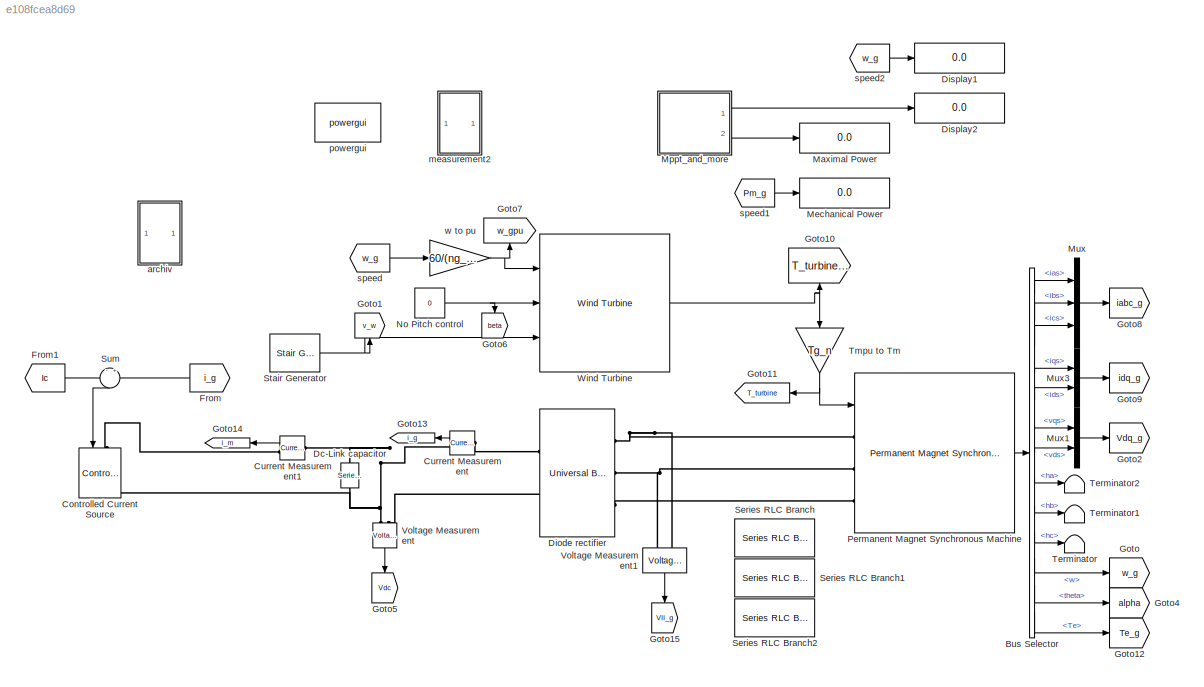
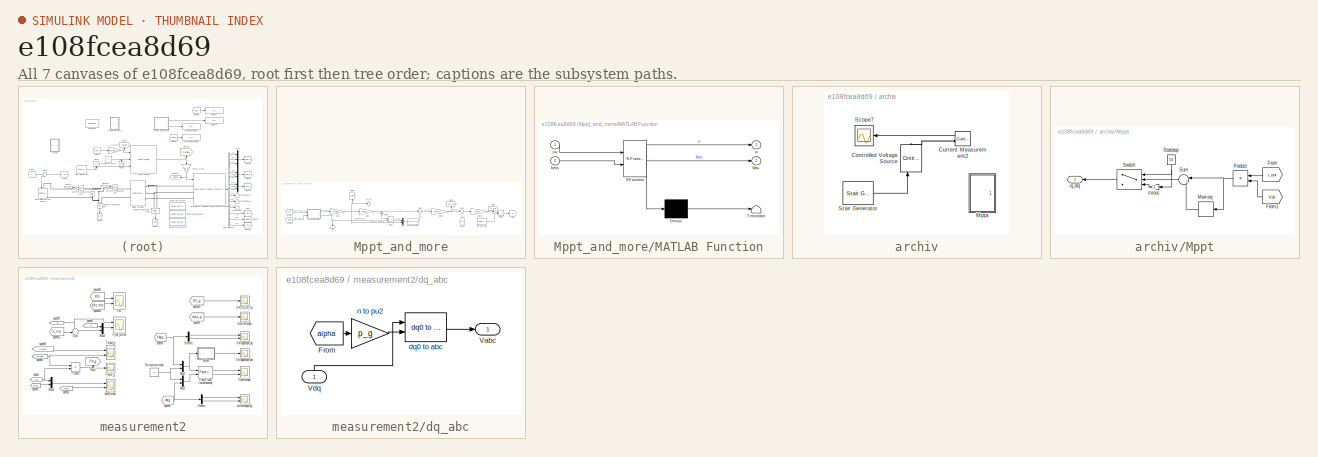
[diagram: thumbnail index - all 7 canvases of the model, root first then tree order]
MODEL slx_e108fcea8d69
KIND model
CONFIG AbsTol = auto
CONFIG FixedStep = auto
CONFIG MaxStep = 10e-5
CONFIG MinStep = auto
CONFIG RelTol = 1e-3
CONFIG SampleTimeConstraint = Unconstrained
CONFIG Solver = ode23tb
CONFIG SolverMode = Auto
CONFIG SolverName = ode23tb
CONFIG StartTime = 0.0
CONFIG StopTime = 8
BLOCK [BusSelector] Bus Selector
  OutputSignals = ias,ibs,ics,iqs,ids,vqs,vds,ha,hb,hc,w,theta,Te
  Ports = [1, 13]
BLOCK [Reference] Controlled Current Source  REF=powerlib/Electrical
Sources/Controlled Current Source
  Ports = [1, 0, 0, 0, 0, 1, 1]
  SourceBlock = powerlib/Electrical\nSources/Controlled Current Source
  SourceType = Controlled Current Source
BLOCK [Reference] Current Measurement  REF=powerlib/Measurements/Current Measurement
  Ports = [0, 1, 0, 0, 0, 1, 1]
  SourceBlock = powerlib/Measurements/Current Measurement
  SourceType = Current Measurement
  UserDataPersistent = on
BLOCK [Reference] Current Measurement1  REF=powerlib/Measurements/Current Measurement
  Ports = [0, 1, 0, 0, 0, 1, 1]
  SourceBlock = powerlib/Measurements/Current Measurement
  SourceType = Current Measurement
  UserDataPersistent = on
BLOCK [Reference] Dc-Link capacitor  REF=powerlib/Elements/Series RLC Branch
  Ports = [0, 0, 0, 0, 0, 1, 1]
  SourceBlock = powerlib/Elements/Series RLC Branch
  SourceType = Series RLC Branch
BLOCK [Reference] Diode rectifier  REF=powerlib/Power
Electronics/Universal Bridge
  Ports = [0, 0, 0, 0, 0, 3, 2]
  SourceBlock = powerlib/Power\nElectronics/Universal Bridge
  SourceType = Universal Bridge
BLOCK [Display] Display1
  Decimation = 1
  Ports = [1]
BLOCK [Display] Display2
  Decimation = 1
  Ports = [1]
BLOCK [From] From
  GotoTag = i_g
  TagVisibility = global
BLOCK [From] From1
  GotoTag = Ic
  TagVisibility = global
BLOCK [Goto] Goto
  GotoTag = w_g
  TagVisibility = global
BLOCK [Goto] Goto1
  GotoTag = v_w
  TagVisibility = global
BLOCK [Goto] Goto10
  GotoTag = T_turbinepu
  TagVisibility = global
BLOCK [Goto] Goto11
  GotoTag = T_turbine
  TagVisibility = global
BLOCK [Goto] Goto12
  GotoTag = Te_g
  TagVisibility = global
BLOCK [Goto] Goto13
  GotoTag = i_g
  TagVisibility = global
BLOCK [Goto] Goto14
  GotoTag = i_m
  TagVisibility = global
BLOCK [Goto] Goto15
  GotoTag = Vll_g
  TagVisibility = global
BLOCK [Goto] Goto2
  GotoTag = Vdq_g
  TagVisibility = global
BLOCK [Goto] Goto4
  GotoTag = alpha
  TagVisibility = global
BLOCK [Goto] Goto5
  GotoTag = Vdc
  TagVisibility = global
BLOCK [Goto] Goto6
  GotoTag = beta
  TagVisibility = global
BLOCK [Goto] Goto7
  GotoTag = w_gpu
  TagVisibility = global
BLOCK [Goto] Goto8
  GotoTag = iabc_g
  TagVisibility = global
BLOCK [Goto] Goto9
  GotoTag = idq_g
  TagVisibility = global
BLOCK [Display] Maximal Power
  Decimation = 1
  Ports = [1]
BLOCK [Display] Mechanical Power
  Decimation = 1
  Ports = [1]
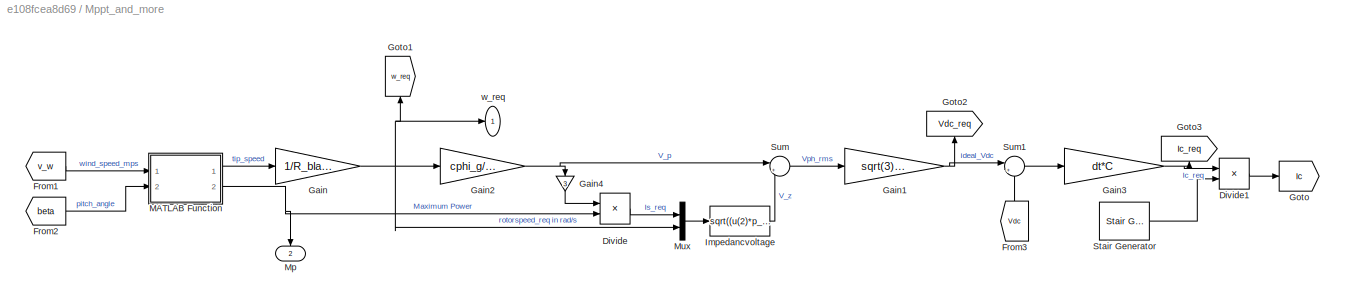
BLOCK [SubSystem] Mppt_and_more
  Ports = [0, 2]
  RequestExecContextInheritance = off
  Variant = off
BLOCK [Product] Mppt_and_more/Divide
  InputSameDT = off
  Inputs = /*
  OutDataTypeStr = Inherit: Inherit via internal rule
  Ports = [2, 1]
  RndMeth = Floor
  SaturateOnIntegerOverflow = off
BLOCK [Product] Mppt_and_more/Divide1
  InputSameDT = off
  Inputs = **
  OutDataTypeStr = Inherit: Inherit via internal rule
  Ports = [2, 1]
  RndMeth = Floor
  SaturateOnIntegerOverflow = off
BLOCK [From] Mppt_and_more/From1
  GotoTag = v_w
  TagVisibility = global
BLOCK [From] Mppt_and_more/From2
  GotoTag = beta
  TagVisibility = global
BLOCK [From] Mppt_and_more/From3
  GotoTag = Vdc
  TagVisibility = global
BLOCK [Gain] Mppt_and_more/Gain
  Gain = 1/R_blades
  OutDataTypeStr = Inherit: Inherit via internal rule
  ParamDataTypeStr = Inherit: Inherit via internal rule
  SaturateOnIntegerOverflow = off
BLOCK [Gain] Mppt_and_more/Gain1
  Gain = sqrt(3)*sqrt(2)
  OutDataTypeStr = Inherit: Inherit via internal rule
  ParamDataTypeStr = Inherit: Inherit via internal rule
  SaturateOnIntegerOverflow = off
BLOCK [Gain] Mppt_and_more/Gain2
  Gain = cphi_g/(2*pi)
  OutDataTypeStr = Inherit: Inherit via internal rule
  ParamDataTypeStr = Inherit: Inherit via internal rule
  SaturateOnIntegerOverflow = off
BLOCK [Gain] Mppt_and_more/Gain3
  Gain = dt*C
  OutDataTypeStr = Inherit: Inherit via internal rule
  ParamDataTypeStr = Inherit: Inherit via internal rule
  SaturateOnIntegerOverflow = off
BLOCK [Gain] Mppt_and_more/Gain4
  Gain = 3
  OutDataTypeStr = Inherit: Inherit via internal rule
  ParamDataTypeStr = Inherit: Inherit via internal rule
  SaturateOnIntegerOverflow = off
BLOCK [Goto] Mppt_and_more/Goto
  GotoTag = Ic
  TagVisibility = global
BLOCK [Goto] Mppt_and_more/Goto1
  GotoTag = w_req
  TagVisibility = global
BLOCK [Goto] Mppt_and_more/Goto2
  GotoTag = Vdc_req
  TagVisibility = global
BLOCK [Goto] Mppt_and_more/Goto3
  GotoTag = Ic_req
  TagVisibility = global
BLOCK [Fcn] Mppt_and_more/Impedancvoltage
  Expr = sqrt((u(2)*p_g*Ls_g)^2+Rs_g^2)*u(1)
BLOCK [SubSystem] Mppt_and_more/MATLAB Function
  ErrorFcn = Stateflow.Translate.translate
  PermitHierarchicalResolution = ExplicitOnly
  Ports = [2, 2]
  RequestExecContextInheritance = off
  SFBlockType = MATLAB Function
  TreatAsAtomicUnit = on
  Variant = off
BLOCK [Demux] Mppt_and_more/MATLAB Function/ Demux 
  Outputs = 1
  Ports = [1, 1]
BLOCK [S-Function] Mppt_and_more/MATLAB Function/ SFunction 
  EnableBusSupport = on
  FunctionName = sf_sfun
  PortCounts = [2 3]
  Ports = [2, 3]
  SFunctionDeploymentMode = off
  Tag = Stateflow S-Function Diode_Windturbin 2
BLOCK [Terminator] Mppt_and_more/MATLAB Function/ Terminator 
BLOCK [Outport] Mppt_and_more/MATLAB Function/Max
  IconDisplay = Port number
  Port = 2
BLOCK [Inport] Mppt_and_more/MATLAB Function/beta
  IconDisplay = Port number
  Port = 2
BLOCK [Inport] Mppt_and_more/MATLAB Function/vw
  IconDisplay = Port number
BLOCK [Outport] Mppt_and_more/MATLAB Function/w
  IconDisplay = Port number
BLOCK [Outport] Mppt_and_more/Mp
  IconDisplay = Port number
  Port = 2
BLOCK [Mux] Mppt_and_more/Mux
  DisplayOption = bar
  Inputs = 2
  Ports = [2, 1]
BLOCK [Reference] Mppt_and_more/Stair Generator  REF=powerlib_meascontrol/Pulse & Signal
Generators/Stair
Generator
  Ports = [0, 1]
  SourceBlock = powerlib_meascontrol/Pulse & Signal\nGenerators/Stair\nGenerator
  SourceType = Stair Generator
BLOCK [Sum] Mppt_and_more/Sum
  IconShape = round
  InputSameDT = off
  Inputs = |+-
  OutDataTypeStr = Inherit: Inherit via internal rule
  Ports = [2, 1]
  SaturateOnIntegerOverflow = off
BLOCK [Sum] Mppt_and_more/Sum1
  IconShape = round
  InputSameDT = off
  Inputs = |+-
  OutDataTypeStr = Inherit: Inherit via internal rule
  Ports = [2, 1]
  SaturateOnIntegerOverflow = off
BLOCK [Outport] Mppt_and_more/w_req
  IconDisplay = Port number
BLOCK [Mux] Mux
  DisplayOption = bar
  Inputs = 3
  Ports = [3, 1]
BLOCK [Mux] Mux1
  DisplayOption = bar
  Inputs = 2
  Ports = [2, 1]
BLOCK [Mux] Mux3
  DisplayOption = bar
  Inputs = 2
  Ports = [2, 1]
BLOCK [Constant] No Pitch control
  Value = 0
BLOCK [Reference] Permanent Magnet Synchronous Machine  REF=powerlib/Machines/Permanent Magnet
Synchronous Machine
  Ports = [1, 1, 0, 0, 0, 3]
  SourceBlock = powerlib/Machines/Permanent Magnet\nSynchronous Machine
  SourceType = Permanent Magnet Synchronous Machine
BLOCK [Reference] Series RLC Branch  REF=powerlib/Elements/Series RLC Branch
  Commented = on
  Ports = [0, 0, 0, 0, 0, 1, 1]
  SourceBlock = powerlib/Elements/Series RLC Branch
  SourceType = Series RLC Branch
BLOCK [Reference] Series RLC Branch1  REF=powerlib/Elements/Series RLC Branch
  Commented = on
  Ports = [0, 0, 0, 0, 0, 1, 1]
  SourceBlock = powerlib/Elements/Series RLC Branch
  SourceType = Series RLC Branch
BLOCK [Reference] Series RLC Branch2  REF=powerlib/Elements/Series RLC Branch
  Commented = on
  Ports = [0, 0, 0, 0, 0, 1, 1]
  SourceBlock = powerlib/Elements/Series RLC Branch
  SourceType = Series RLC Branch
BLOCK [Reference] Stair Generator  REF=powerlib_meascontrol/Pulse & Signal
Generators/Stair
Generator
  Ports = [0, 1]
  SourceBlock = powerlib_meascontrol/Pulse & Signal\nGenerators/Stair\nGenerator
  SourceType = Stair Generator
BLOCK [Sum] Sum
  IconShape = round
  InputSameDT = off
  Inputs = -|+
  OutDataTypeStr = Inherit: Inherit via internal rule
  Ports = [2, 1]
  SaturateOnIntegerOverflow = off
BLOCK [Terminator] Terminator
BLOCK [Terminator] Terminator1
BLOCK [Terminator] Terminator2
BLOCK [Gain] Tmpu to Tm
  Gain = Tg_n
  OutDataTypeStr = Inherit: Inherit via internal rule
  ParamDataTypeStr = Inherit: Inherit via internal rule
  SaturateOnIntegerOverflow = off
BLOCK [Reference] Voltage Measurement  REF=powerlib/Measurements/Voltage Measurement
  Ports = [0, 1, 0, 0, 0, 2]
  SourceBlock = powerlib/Measurements/Voltage Measurement
  SourceType = Voltage Measurement
  UserDataPersistent = on
BLOCK [Reference] Voltage Measurement1  REF=powerlib/Measurements/Voltage Measurement
  Ports = [0, 1, 0, 0, 0, 2]
  SourceBlock = powerlib/Measurements/Voltage Measurement
  SourceType = Voltage Measurement
  UserDataPersistent = on
BLOCK [Reference] Wind Turbine  REF=re_lib/Wind Generation/Wind Turbine
  Ports = [3, 1]
  SourceBlock = re_lib/Wind Generation/Wind Turbine
  SourceType = Wind Turbine
BLOCK [SubSystem] archiv
  Commented = on
  Ports = []
  RequestExecContextInheritance = off
  Variant = off
BLOCK [Reference] archiv/Controlled Voltage Source  REF=powerlib/Electrical
Sources/Controlled Voltage Source
  Commented = on
  Ports = [1, 0, 0, 0, 0, 1, 1]
  SourceBlock = powerlib/Electrical\nSources/Controlled Voltage Source
  SourceType = Controlled Voltage Source
BLOCK [Reference] archiv/Current Measurement2  REF=powerlib/Measurements/Current Measurement
  Commented = on
  Ports = [0, 1, 0, 0, 0, 1, 1]
  SourceBlock = powerlib/Measurements/Current Measurement
  SourceType = Current Measurement
  UserDataPersistent = on
BLOCK [SubSystem] archiv/Mppt
  Commented = on
  Ports = [0, 1]
  RequestExecContextInheritance = off
  Variant = off
BLOCK [From] archiv/Mppt/From
  GotoTag = i_out
BLOCK [From] archiv/Mppt/From1
  GotoTag = Vdc
BLOCK [Memory] archiv/Mppt/Memory
BLOCK [Product] archiv/Mppt/Product
  InputSameDT = off
  OutDataTypeStr = Inherit: Inherit via internal rule
  Ports = [2, 1]
  RndMeth = Floor
  SaturateOnIntegerOverflow = off
BLOCK [Constant] archiv/Mppt/Startstep
  Value = 50
BLOCK [Sum] archiv/Mppt/Sum
  IconShape = round
  InputSameDT = off
  Inputs = |+-
  OutDataTypeStr = Inherit: Inherit via internal rule
  Ports = [2, 1]
  SaturateOnIntegerOverflow = off
BLOCK [Switch] archiv/Mppt/Switch
  Criteria = u2 > Threshold
  InputSameDT = off
  SaturateOnIntegerOverflow = off
BLOCK [Outport] archiv/Mppt/iq_req
  IconDisplay = Port number
BLOCK [Gain] archiv/Mppt/minus
  Gain = -1
  OutDataTypeStr = Inherit: Inherit via internal rule
  ParamDataTypeStr = Inherit: Inherit via internal rule
  SaturateOnIntegerOverflow = off
BLOCK [Scope] archiv/Scope7
  Commented = on
  Ports = [1]
  ScopeSpecificationString = Simulink.scopes.TimeScopeBlockCfg('CurrentConfiguration', extmgr.ConfigurationSet(extmgr.Configuration('Core','General UI',true),extmgr.Configuration('Core','Source UI',true),extmgr.Configuration('Sources','WiredSimulink',true,'DataLoggingVariableName','ScopeData2'),extmgr.Configuration('Visuals','Time Domain',true,'SerializedDisplays',{struct('MinYLimReal','13.98044','MaxYLimReal','22.83673','YLa...<+1477ch>
BLOCK [Reference] archiv/Stair Generator  REF=powerlib_meascontrol/Pulse & Signal
Generators/Stair
Generator
  Commented = on
  Ports = [0, 1]
  SourceBlock = powerlib_meascontrol/Pulse & Signal\nGenerators/Stair\nGenerator
  SourceType = Stair Generator
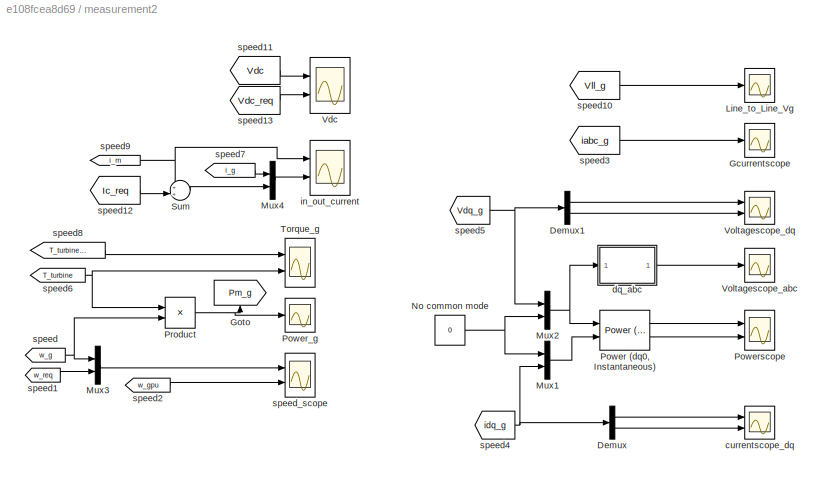
BLOCK [SubSystem] measurement2
  Ports = []
  RequestExecContextInheritance = off
  Variant = off
BLOCK [Demux] measurement2/Demux
  DisplayOption = bar
  Outputs = 2
  Ports = [1, 2]
BLOCK [Demux] measurement2/Demux1
  DisplayOption = bar
  Outputs = 2
  Ports = [1, 2]
BLOCK [Scope] measurement2/Gcurrentscope
  Ports = [1]
  ScopeSpecificationString = Simulink.scopes.TimeScopeBlockCfg('CurrentConfiguration', extmgr.ConfigurationSet(extmgr.Configuration('Core','General UI',true),extmgr.Configuration('Core','Source UI',true),extmgr.Configuration('Sources','WiredSimulink',true,'DataLoggingVariableName','ScopeData2','DataLoggingSaveFormat','Array','DataLoggingDecimation','1','DataLoggingDecimateData',true),extmgr.Configuration('Visuals','Time Domai...<+1477ch>
BLOCK [Goto] measurement2/Goto
  GotoTag = Pm_g
  TagVisibility = global
BLOCK [Scope] measurement2/Line_to_Line_Vg
  Ports = [1]
  ScopeSpecificationString = Simulink.scopes.TimeScopeBlockCfg('CurrentConfiguration', extmgr.ConfigurationSet(extmgr.Configuration('Core','General UI',true),extmgr.Configuration('Core','Source UI',true),extmgr.Configuration('Sources','WiredSimulink',true,'DataLoggingVariableName','ScopeData4','DataLoggingSaveFormat','Array','DataLoggingDecimation','1','DataLoggingDecimateData',true),extmgr.Configuration('Visuals','Time Domai...<+1476ch>
BLOCK [Mux] measurement2/Mux1
  DisplayOption = bar
  Inputs = 2
  Ports = [2, 1]
BLOCK [Mux] measurement2/Mux2
  DisplayOption = bar
  Inputs = 2
  Ports = [2, 1]
BLOCK [Mux] measurement2/Mux3
  DisplayOption = bar
  Inputs = 2
  Ports = [2, 1]
BLOCK [Mux] measurement2/Mux4
  DisplayOption = bar
  Inputs = 2
  Ports = [2, 1]
BLOCK [Constant] measurement2/No common mode
  Value = 0
BLOCK [Reference] measurement2/Power (dq0, Instantaneous)  REF=powerlib_meascontrol/Measurements/Power
(dq0, Instantaneous)
  Ports = [2, 2]
  SourceBlock = powerlib_meascontrol/Measurements/Power\n(dq0, Instantaneous)
  SourceType = Power (dq0, Instantaneous)
BLOCK [Scope] measurement2/Power_g
  Ports = [1]
  ScopeSpecificationString = Simulink.scopes.TimeScopeBlockCfg('CurrentConfiguration', extmgr.ConfigurationSet(extmgr.Configuration('Core','General UI',true),extmgr.Configuration('Core','Source UI',true),extmgr.Configuration('Sources','WiredSimulink',true,'DataLoggingVariableName','ScopeData1'),extmgr.Configuration('Visuals','Time Domain',true,'SerializedDisplays',{struct('MinYLimReal','-1807.20588','MaxYLimReal','200.80065',...<+1411ch>
BLOCK [Scope] measurement2/Powerscope
  NumInputPorts = 2
  Ports = [2]
  ScopeSpecificationString = Simulink.scopes.TimeScopeBlockCfg('CurrentConfiguration', extmgr.ConfigurationSet(extmgr.Configuration('Core','General UI',true),extmgr.Configuration('Core','Source UI',true),extmgr.Configuration('Sources','WiredSimulink',true,'DataLoggingVariableName','ScopeData4'),extmgr.Configuration('Visuals','Time Domain',true,'SerializedDisplays',{struct('MinYLimReal','-1.00000','MaxYLimReal','1.00000','YLab...<+2454ch>
BLOCK [Product] measurement2/Product
  InputSameDT = off
  OutDataTypeStr = Inherit: Inherit via internal rule
  Ports = [2, 1]
  RndMeth = Floor
  SaturateOnIntegerOverflow = off
BLOCK [Sum] measurement2/Sum
  IconShape = round
  InputSameDT = off
  Inputs = ++|
  OutDataTypeStr = Inherit: Inherit via internal rule
  Ports = [2, 1]
  SaturateOnIntegerOverflow = off
BLOCK [Scope] measurement2/Torque_g
  NumInputPorts = 2
  Ports = [2]
  ScopeSpecificationString = Simulink.scopes.TimeScopeBlockCfg('CurrentConfiguration', extmgr.ConfigurationSet(extmgr.Configuration('Core','General UI',true),extmgr.Configuration('Core','Source UI',true),extmgr.Configuration('Sources','WiredSimulink',true,'DataLoggingVariableName','ScopeData2'),extmgr.Configuration('Visuals','Time Domain',true,'SerializedDisplays',{struct('MinYLimReal','-1.14953','MaxYLimReal','0.12175','YLab...<+2101ch>
BLOCK [Scope] measurement2/Vdc
  NumInputPorts = 2
  Ports = [2]
  ScopeSpecificationString = Simulink.scopes.TimeScopeBlockCfg('CurrentConfiguration', extmgr.ConfigurationSet(extmgr.Configuration('Core','General UI',true),extmgr.Configuration('Core','Source UI',true),extmgr.Configuration('Sources','WiredSimulink',true,'DataLoggingVariableName','ScopeData5','DataLoggingSaveFormat','Array','DataLoggingDecimation','1','DataLoggingDecimateData',true),extmgr.Configuration('Visuals','Time Domai...<+1529ch>
BLOCK [Scope] measurement2/Voltagescope_abc
  Ports = [1]
  ScopeSpecificationString = Simulink.scopes.TimeScopeBlockCfg('CurrentConfiguration', extmgr.ConfigurationSet(extmgr.Configuration('Core','General UI',true),extmgr.Configuration('Core','Source UI',true),extmgr.Configuration('Sources','WiredSimulink',true,'DataLoggingVariableName','ScopeData5'),extmgr.Configuration('Visuals','Time Domain',true,'SerializedDisplays',{struct('MinYLimReal','-1.00000','MaxYLimReal','1.00000','YLab...<+1535ch>
BLOCK [Scope] measurement2/Voltagescope_dq
  NumInputPorts = 2
  Ports = [2]
  ScopeSpecificationString = Simulink.scopes.TimeScopeBlockCfg('CurrentConfiguration', extmgr.ConfigurationSet(extmgr.Configuration('Core','General UI',true),extmgr.Configuration('Core','Source UI',true),extmgr.Configuration('Sources','WiredSimulink',true,'DataLoggingVariableName','ScopeData6','DataLoggingSaveFormat','Array','DataLoggingDecimation','1','DataLoggingDecimateData',true),extmgr.Configuration('Visuals','Time Domai...<+1498ch>
BLOCK [Scope] measurement2/currentscope_dq
  NumInputPorts = 2
  Ports = [2]
  ScopeSpecificationString = Simulink.scopes.TimeScopeBlockCfg('CurrentConfiguration', extmgr.ConfigurationSet(extmgr.Configuration('Core','General UI',true),extmgr.Configuration('Core','Source UI',true),extmgr.Configuration('Sources','WiredSimulink',true,'DataLoggingVariableName','ScopeData3'),extmgr.Configuration('Visuals','Time Domain',true,'SerializedDisplays',{struct('MinYLimReal','-56.31009','MaxYLimReal','6.25668','YLa...<+2094ch>
BLOCK [SubSystem] measurement2/dq_abc
  Ports = [1, 1]
  RequestExecContextInheritance = off
  Variant = off
BLOCK [From] measurement2/dq_abc/From
  GotoTag = alpha
  TagVisibility = global
BLOCK [Outport] measurement2/dq_abc/Vabc
  IconDisplay = Port number
BLOCK [Inport] measurement2/dq_abc/Vdq
  IconDisplay = Port number
BLOCK [Reference] measurement2/dq_abc/dq0 to abc  REF=powerlib_meascontrol/Transformations/dq0 to abc
  Ports = [2, 1]
  SourceBlock = powerlib_meascontrol/Transformations/dq0 to abc
  SourceType = dq0 to abc Transformation
BLOCK [Gain] measurement2/dq_abc/n to pu2
  Gain = p_g
  OutDataTypeStr = Inherit: Inherit via internal rule
  ParamDataTypeStr = Inherit: Inherit via internal rule
  SaturateOnIntegerOverflow = off
BLOCK [Scope] measurement2/in_out_current
  NumInputPorts = 2
  Ports = [2]
  ScopeSpecificationString = Simulink.scopes.TimeScopeBlockCfg('CurrentConfiguration', extmgr.ConfigurationSet(extmgr.Configuration('Core','General UI',true),extmgr.Configuration('Core','Source UI',true),extmgr.Configuration('Sources','WiredSimulink',true,'DataLoggingVariableName','ScopeData3','DataLoggingSaveFormat','Array','DataLoggingDecimation','1','DataLoggingDecimateData',true),extmgr.Configuration('Visuals','Time Domai...<+2257ch>
BLOCK [From] measurement2/speed
  GotoTag = w_g
  TagVisibility = global
BLOCK [From] measurement2/speed1
  GotoTag = w_req
  TagVisibility = global
BLOCK [From] measurement2/speed10
  GotoTag = Vll_g
  TagVisibility = global
BLOCK [From] measurement2/speed11
  GotoTag = Vdc
  TagVisibility = global
BLOCK [From] measurement2/speed12
  GotoTag = Ic_req
  TagVisibility = global
BLOCK [From] measurement2/speed13
  GotoTag = Vdc_req
  TagVisibility = global
BLOCK [From] measurement2/speed2
  GotoTag = w_gpu
  TagVisibility = global
BLOCK [From] measurement2/speed3
  GotoTag = iabc_g
  TagVisibility = global
BLOCK [From] measurement2/speed4
  GotoTag = idq_g
  TagVisibility = global
BLOCK [From] measurement2/speed5
  GotoTag = Vdq_g
  TagVisibility = global
BLOCK [From] measurement2/speed6
  GotoTag = T_turbine
  TagVisibility = global
BLOCK [From] measurement2/speed7
  GotoTag = i_g
  TagVisibility = global
BLOCK [From] measurement2/speed8
  GotoTag = T_turbinepu
  TagVisibility = global
BLOCK [From] measurement2/speed9
  GotoTag = i_m
  TagVisibility = global
BLOCK [Scope] measurement2/speed_scope
  NumInputPorts = 2
  Ports = [2]
  ScopeSpecificationString = Simulink.scopes.TimeScopeBlockCfg('CurrentConfiguration', extmgr.ConfigurationSet(extmgr.Configuration('Core','General UI',true),extmgr.Configuration('Core','Source UI',true),extmgr.Configuration('Sources','WiredSimulink',true),extmgr.Configuration('Visuals','Time Domain',true,'SerializedDisplays',{struct('MinYLimReal','-12.36486','MaxYLimReal','111.28378','YLabelReal','','MinYLimMag','0.00000','M...<+2081ch>
BLOCK [Reference] powergui  REF=powerlib/powergui
  Ports = []
  Priority = 1
  SourceBlock = powerlib/powergui
  SourceType = PSB option menu block
  UserDataPersistent = on
BLOCK [From] speed
  GotoTag = w_g
  TagVisibility = global
BLOCK [From] speed1
  GotoTag = Pm_g
  TagVisibility = global
BLOCK [From] speed2
  GotoTag = w_g
  TagVisibility = global
BLOCK [Gain] w to pu
  Gain = 60/(ng_0*2*pi)
  OutDataTypeStr = Inherit: Inherit via internal rule
  ParamDataTypeStr = Inherit: Inherit via internal rule
  SaturateOnIntegerOverflow = off
LINE Bus Selector:1 -> Mux:1
LINE Bus Selector:10 -> Terminator:1
LINE Bus Selector:11 -> Goto:1
LINE Bus Selector:12 -> Goto4:1
LINE Bus Selector:13 -> Goto12:1
LINE Bus Selector:2 -> Mux:2
LINE Bus Selector:3 -> Mux:3
LINE Bus Selector:4 -> Mux3:1
LINE Bus Selector:5 -> Mux3:2
LINE Bus Selector:6 -> Mux1:1
LINE Bus Selector:7 -> Mux1:2
LINE Bus Selector:8 -> Terminator2:1
LINE Bus Selector:9 -> Terminator1:1
LINE Current Measurement1:1 -> Goto14:1
LINE Current Measurement:1 -> Goto13:1
LINE From1:1 -> Sum:1
LINE From:1 -> Sum:2
LINE Mppt_and_more/Divide1:1 -> Mppt_and_more/Goto:1
LINE Mppt_and_more/Divide:1 -> Mppt_and_more/Mux:1
LINE Mppt_and_more/From1:1 -> Mppt_and_more/MATLAB Function:1
LINE Mppt_and_more/From2:1 -> Mppt_and_more/MATLAB Function:2
LINE Mppt_and_more/From3:1 -> Mppt_and_more/Sum1:2
NET Mppt_and_more/Gain1:1 -> Mppt_and_more/Goto2:1, Mppt_and_more/Sum1:1
NET Mppt_and_more/Gain2:1 -> Mppt_and_more/Gain4:1, Mppt_and_more/Sum:1
NET Mppt_and_more/Gain3:1 -> Mppt_and_more/Divide1:1, Mppt_and_more/Goto3:1
LINE Mppt_and_more/Gain4:1 -> Mppt_and_more/Divide:1
NET Mppt_and_more/Gain:1 -> Mppt_and_more/Gain2:1, Mppt_and_more/Goto1:1, Mppt_and_more/Mux:2, Mppt_and_more/w_req:1
LINE Mppt_and_more/Impedancvoltage:1 -> Mppt_and_more/Sum:2
LINE Mppt_and_more/MATLAB Function:1 -> Mppt_and_more/Gain:1
NET Mppt_and_more/MATLAB Function:2 -> Mppt_and_more/Divide:2, Mppt_and_more/Mp:1
LINE Mppt_and_more/Mux:1 -> Mppt_and_more/Impedancvoltage:1
LINE Mppt_and_more/Stair Generator:1 -> Mppt_and_more/Divide1:2
LINE Mppt_and_more/Sum1:1 -> Mppt_and_more/Gain3:1
LINE Mppt_and_more/Sum:1 -> Mppt_and_more/Gain1:1
LINE Mppt_and_more:1 -> Display2:1
LINE Mppt_and_more:2 -> Maximal Power:1
LINE Mux1:1 -> Goto2:1
LINE Mux3:1 -> Goto9:1
LINE Mux:1 -> Goto8:1
NET No Pitch control:1 -> Goto6:1, Wind Turbine:2
LINE Permanent Magnet Synchronous Machine:1 -> Bus Selector:1
NET Stair Generator:1 -> Goto1:1, Wind Turbine:3
LINE Sum:1 -> Controlled Current Source:1
NET Tmpu to Tm:1 -> Goto11:1, Permanent Magnet Synchronous Machine:1
LINE Voltage Measurement1:1 -> Goto15:1
LINE Voltage Measurement:1 -> Goto5:1
NET Wind Turbine:1 -> Goto10:1, Tmpu to Tm:1
LINE archiv/Current Measurement2:1 -> archiv/Scope7:1
LINE archiv/Mppt/From1:1 -> archiv/Mppt/Product:2
LINE archiv/Mppt/From:1 -> archiv/Mppt/Product:1
LINE archiv/Mppt/Memory:1 -> archiv/Mppt/Sum:2
NET archiv/Mppt/Product:1 -> archiv/Mppt/Memory:1, archiv/Mppt/Sum:1
NET archiv/Mppt/Startstep:1 -> archiv/Mppt/Switch:1, archiv/Mppt/minus:1
LINE archiv/Mppt/Sum:1 -> archiv/Mppt/Switch:2
LINE archiv/Mppt/Switch:1 -> archiv/Mppt/iq_req:1
LINE archiv/Mppt/minus:1 -> archiv/Mppt/Switch:3
LINE archiv/Stair Generator:1 -> archiv/Controlled Voltage Source:1
LINE measurement2/Demux1:1 -> measurement2/Voltagescope_dq:1
LINE measurement2/Demux1:2 -> measurement2/Voltagescope_dq:2
LINE measurement2/Demux:1 -> measurement2/currentscope_dq:1
LINE measurement2/Demux:2 -> measurement2/currentscope_dq:2
LINE measurement2/Mux1:1 -> measurement2/Power (dq0, Instantaneous):2
NET measurement2/Mux2:1 -> measurement2/Power (dq0, Instantaneous):1, measurement2/dq_abc:1
LINE measurement2/Mux3:1 -> measurement2/speed_scope:1
LINE measurement2/Mux4:1 -> measurement2/in_out_current:2
NET measurement2/No common mode:1 -> measurement2/Mux1:1, measurement2/Mux2:2
LINE measurement2/Power (dq0, Instantaneous):1 -> measurement2/Powerscope:1
LINE measurement2/Power (dq0, Instantaneous):2 -> measurement2/Powerscope:2
NET measurement2/Product:1 -> measurement2/Goto:1, measurement2/Power_g:1
LINE measurement2/Sum:1 -> measurement2/Mux4:2
LINE measurement2/dq_abc/From:1 -> measurement2/dq_abc/n to pu2:1
LINE measurement2/dq_abc/Vdq:1 -> measurement2/dq_abc/dq0 to abc:1
LINE measurement2/dq_abc/dq0 to abc:1 -> measurement2/dq_abc/Vabc:1
LINE measurement2/dq_abc/n to pu2:1 -> measurement2/dq_abc/dq0 to abc:2
LINE measurement2/dq_abc:1 -> measurement2/Voltagescope_abc:1
LINE measurement2/speed10:1 -> measurement2/Line_to_Line_Vg:1
LINE measurement2/speed11:1 -> measurement2/Vdc:1
LINE measurement2/speed12:1 -> measurement2/Sum:2
LINE measurement2/speed13:1 -> measurement2/Vdc:2
LINE measurement2/speed1:1 -> measurement2/Mux3:2
LINE measurement2/speed2:1 -> measurement2/speed_scope:2
LINE measurement2/speed3:1 -> measurement2/Gcurrentscope:1
NET measurement2/speed4:1 -> measurement2/Demux:1, measurement2/Mux1:2
NET measurement2/speed5:1 -> measurement2/Demux1:1, measurement2/Mux2:1
NET measurement2/speed6:1 -> measurement2/Product:1, measurement2/Torque_g:2
LINE measurement2/speed7:1 -> measurement2/Mux4:1
LINE measurement2/speed8:1 -> measurement2/Torque_g:1
NET measurement2/speed9:1 -> measurement2/Sum:1, measurement2/in_out_current:1
NET measurement2/speed:1 -> measurement2/Mux3:1, measurement2/Product:2
LINE speed1:1 -> Mechanical Power:1
LINE speed2:1 -> Display1:1
LINE speed:1 -> w to pu:1
NET w to pu:1 -> Goto7:1, Wind Turbine:1
PLINE Controlled Current Source:LConn1 -- Current Measurement1:RConn1
PNET net1: Controlled Current Source:RConn1 -- Dc-Link capacitor:RConn1 -- Diode rectifier:RConn2 -- Voltage Measurement:LConn2
PNET net2: Current Measurement1:LConn1 -- Current Measurement:RConn1 -- Dc-Link capacitor:LConn1 -- Voltage Measurement:LConn1
PLINE Current Measurement:LConn1 -- Diode rectifier:RConn1
PNET net3: Diode rectifier:LConn1 -- Permanent Magnet Synchronous Machine:LConn1 -- Voltage Measurement1:LConn2
PNET net4: Diode rectifier:LConn2 -- Permanent Magnet Synchronous Machine:LConn2 -- Voltage Measurement1:LConn1
PLINE Diode rectifier:LConn3 -- Permanent Magnet Synchronous Machine:LConn3
PLINE archiv/Controlled Voltage Source:RConn1 -- archiv/Current Measurement2:RConn1
note: NET lines group one-source signal fan-out (src -> all destinations, sorted); 1:1 wires keep LINE; PNET lines group multi-terminal physical nets as a canonical sorted terminal list (undirected conserving connections); 2-terminal nets keep the pairwise PLINE form
CHART Mppt_and_more/MATLAB Function states=1 transitions=1
  STATE_LABEL 'eML_blk_kernel()'
  STATE_LABEL 'SCRIPT:\nfunction [w,Max] = Mppt(vw,beta)\nrho = 1.2041;                   % [kg/m^3] air density\nA = pi*1^2;                     % Turbin area\nlambda = linspace(0,15,1000);   % turbinspeed/windspeed\nlambda_i = 1./(1./(lambda+0.08*beta)-0.035/(beta^3+1));\n% Parameters from the matlab wind turbin help\nc1 = 0.5176;\nc2 = 116;\nc3 = 0.4;\nc4 = 5;\nc5 = 21;\nc6 = 0.0068;\n% calculating the power factor\ncp = c...<+505ch>'
